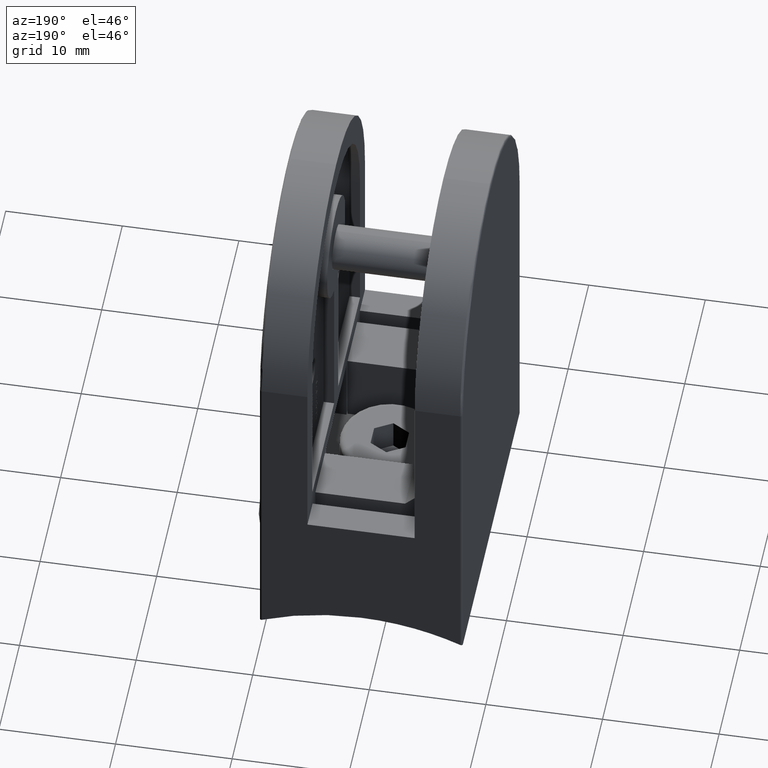
[diagram: clean part render]
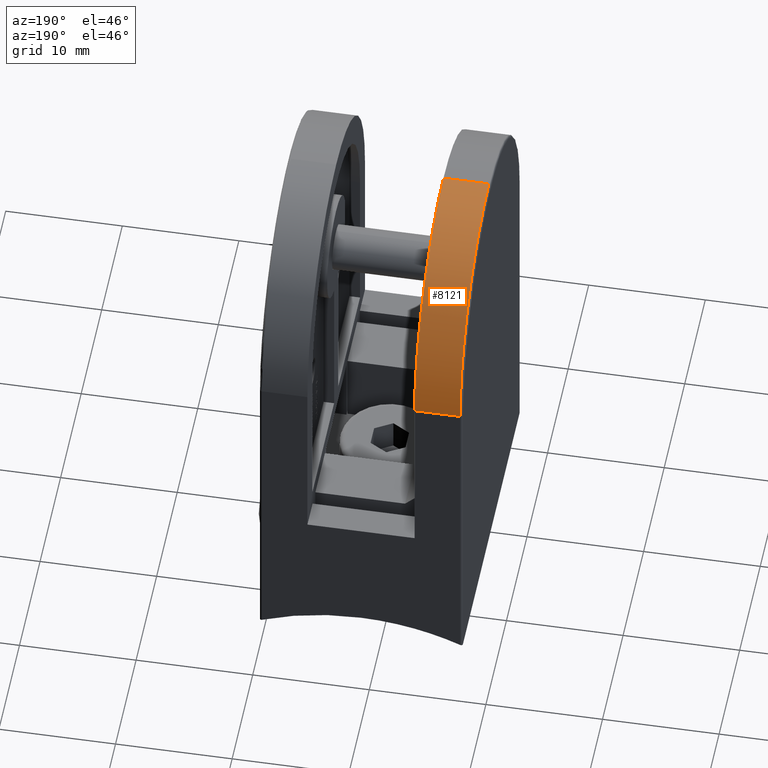
[diagram: same view with one face highlighted and labeled with its STEP entity id]
A machine part, auxiliary view. The second image highlights one B-rep face of the part: STEP entity #8121.
In plain terms, the highlighted cylindrical surface (partial cylindrical patch) has radius 14 mm, axis along (-1, -0, -0).
Its self-contained STEP definition (entity closure, byte-faithful):
#308 = CARTESIAN_POINT ( 'NONE',  ( 4.099999999999999600, 0.0000000000000000000, 39.99999999999999300 ) ) ;
#544 = AXIS2_PLACEMENT_3D ( 'NONE', #23702, #1214, #18892 ) ;
#1214 = DIRECTION ( 'NONE',  ( -1.000000000000000000, -0.0000000000000000000, -0.0000000000000000000 ) ) ;
#8121 = ADVANCED_FACE ( 'NONE', ( #26007 ), #12834, .T. ) ;
#8173 = CARTESIAN_POINT ( 'NONE',  ( 4.099999999999999600, 0.0000000000000000000, 25.99999999999999600 ) ) ;
#9191 = DIRECTION ( 'NONE',  ( -1.000000000000000000, -0.0000000000000000000, -0.0000000000000000000 ) ) ;
#10618 = EDGE_CURVE ( 'NONE', #38100, #27488, #41198, .T. ) ;
#11653 = VERTEX_POINT ( 'NONE', #308 ) ;
#11795 = DIRECTION ( 'NONE',  ( 1.000000000000000000, 0.0000000000000000000, 0.0000000000000000000 ) ) ;
#12401 = EDGE_CURVE ( 'NONE', #27488, #37363, #50845, .T. ) ;
#12834 = CYLINDRICAL_SURFACE ( 'NONE', #544, 13.99999999999999800 ) ;
#13638 = CARTESIAN_POINT ( 'NONE',  ( 4.099999999999999600, 0.0000000000000000000, 39.99999999999999300 ) ) ;
#15828 = CARTESIAN_POINT ( 'NONE',  ( 0.2000000000000000900, 0.0000000000000000000, 25.99999999999999600 ) ) ;
#17261 = CIRCLE ( 'NONE', #39776, 13.99999999999999500 ) ;
#18718 = CARTESIAN_POINT ( 'NONE',  ( 4.099999999999999600, 13.99999999999999500, 25.99999999999999600 ) ) ;
#18892 = DIRECTION ( 'NONE',  ( 0.0000000000000000000, 0.0000000000000000000, 1.000000000000000000 ) ) ;
#21357 = DIRECTION ( 'NONE',  ( 1.000000000000000000, 0.0000000000000000000, 0.0000000000000000000 ) ) ;
#21681 = ORIENTED_EDGE ( 'NONE', *, *, #30176, .F. ) ;
#23120 = VECTOR ( 'NONE', #41407, 1000.000000000000000 ) ;
#23561 = ORIENTED_EDGE ( 'NONE', *, *, #12401, .T. ) ;
#23702 = CARTESIAN_POINT ( 'NONE',  ( 4.099999999999999600, 0.0000000000000000000, 25.99999999999999600 ) ) ;
#24599 = CARTESIAN_POINT ( 'NONE',  ( 0.2000000000000000900, 13.99999999999999500, 25.99999999999999600 ) ) ;
#26007 = FACE_OUTER_BOUND ( 'NONE', #36498, .T. ) ;
#27488 = VERTEX_POINT ( 'NONE', #24599 ) ;
#30176 = EDGE_CURVE ( 'NONE', #38100, #11653, #17261, .T. ) ;
#33158 = ORIENTED_EDGE ( 'NONE', *, *, #10618, .T. ) ;
#34022 = EDGE_CURVE ( 'NONE', #11653, #37363, #53191, .T. ) ;
#34340 = CARTESIAN_POINT ( 'NONE',  ( 0.2000000000000000900, 0.0000000000000000000, 39.99999999999999300 ) ) ;
#34790 = DIRECTION ( 'NONE',  ( 0.0000000000000000000, 0.0000000000000000000, -1.000000000000000000 ) ) ;
#36498 = EDGE_LOOP ( 'NONE', ( #48463, #21681, #33158, #23561 ) ) ;
#37363 = VERTEX_POINT ( 'NONE', #34340 ) ;
#38100 = VERTEX_POINT ( 'NONE', #18718 ) ;
#38394 = DIRECTION ( 'NONE',  ( 0.0000000000000000000, 0.0000000000000000000, -1.000000000000000000 ) ) ;
#39666 = AXIS2_PLACEMENT_3D ( 'NONE', #15828, #11795, #38394 ) ;
#39776 = AXIS2_PLACEMENT_3D ( 'NONE', #8173, #21357, #34790 ) ;
#41198 = LINE ( 'NONE', #46065, #23120 ) ;
#41407 = DIRECTION ( 'NONE',  ( -1.000000000000000000, -0.0000000000000000000, -0.0000000000000000000 ) ) ;
#46065 = CARTESIAN_POINT ( 'NONE',  ( 4.099999999999999600, 13.99999999999999500, 25.99999999999999600 ) ) ;
#48463 = ORIENTED_EDGE ( 'NONE', *, *, #34022, .F. ) ;
#50845 = CIRCLE ( 'NONE', #39666, 13.99999999999999500 ) ;
#51794 = VECTOR ( 'NONE', #9191, 1000.000000000000000 ) ;
#53191 = LINE ( 'NONE', #13638, #51794 ) ;